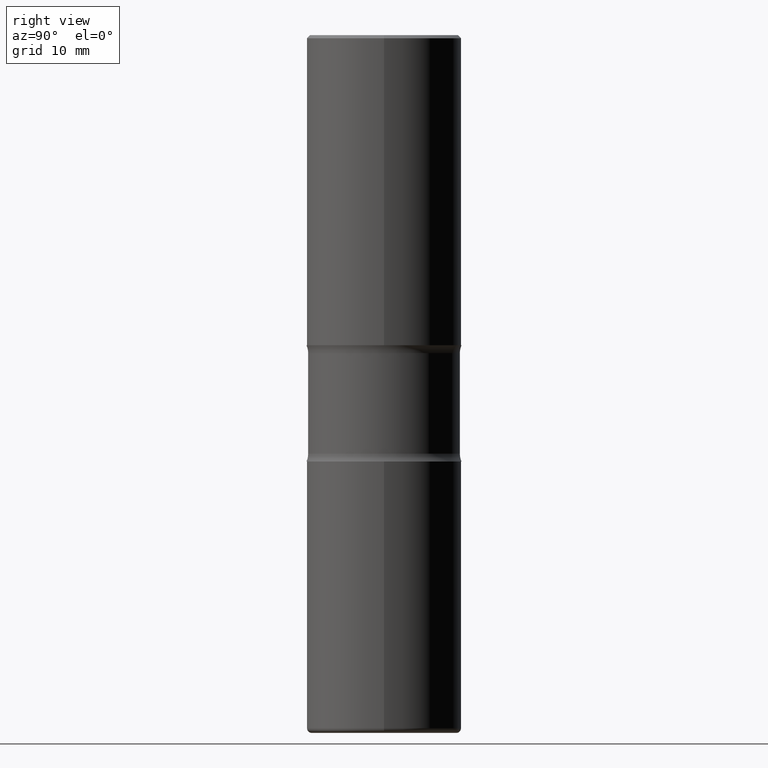
[diagram: clean part render]
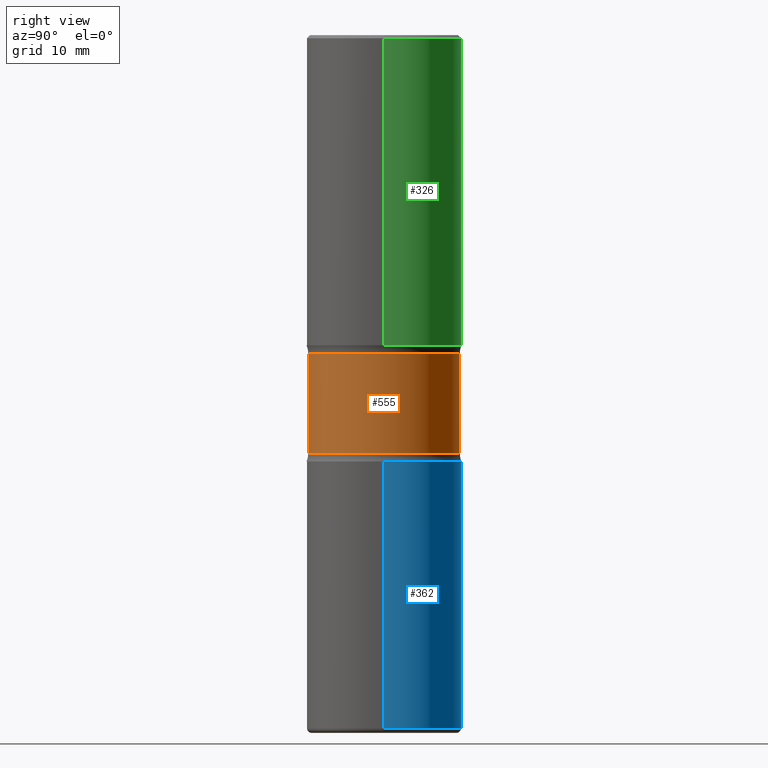
[diagram: same view with three faces highlighted in distinct colors, each labeled with its STEP entity id]
A machine part, right view with three faces highlighted in distinct colors.
Their STEP definitions:

[orange] entity #555 — the highlighted cylindrical surface (partial cylindrical patch) has radius 12.4206 mm, axis along (0, -0, -1).
#44 = AXIS2_PLACEMENT_3D ( 'NONE', #69, #269, #366 ) ;
#55 = VERTEX_POINT ( 'NONE', #398 ) ;
#60 = CYLINDRICAL_SURFACE ( 'NONE', #290, 0.4890000000000000457 ) ;
#65 = VECTOR ( 'NONE', #68, 39.37007874015748143 ) ;
#68 = DIRECTION ( 'NONE',  ( 2.421508309250029379E-29, -3.525794134201012972E-15, -1.000000000000000000 ) ) ;
#69 = CARTESIAN_POINT ( 'NONE',  ( 6.600879344864962376E-29, -9.420792906779880886E-15, -2.698726225026823133 ) ) ;
#102 = VERTEX_POINT ( 'NONE', #196 ) ;
#124 = ORIENTED_EDGE ( 'NONE', *, *, #184, .T. ) ;
#141 = AXIS2_PLACEMENT_3D ( 'NONE', #454, #193, #501 ) ;
#166 = VERTEX_POINT ( 'NONE', #409 ) ;
#178 = DIRECTION ( 'NONE',  ( 2.421508309250029379E-29, -3.525794134201012972E-15, -1.000000000000000000 ) ) ;
#180 = CARTESIAN_POINT ( 'NONE',  ( -3.354783520910168989E-15, -0.4890000000000158109, -4.499999999999999112 ) ) ;
#184 = EDGE_CURVE ( 'NONE', #55, #166, #531, .T. ) ;
#193 = DIRECTION ( 'NONE',  ( 2.421508309250029379E-29, -3.525794134201012578E-15, -1.000000000000000000 ) ) ;
#196 = CARTESIAN_POINT ( 'NONE',  ( 3.414668749388650307E-15, 0.4889999999999906088, -2.698726225026824466 ) ) ;
#198 = LINE ( 'NONE', #371, #65 ) ;
#200 = EDGE_CURVE ( 'NONE', #55, #102, #198, .T. ) ;
#205 = ORIENTED_EDGE ( 'NONE', *, *, #446, .T. ) ;
#229 = DIRECTION ( 'NONE',  ( 6.982962677686265133E-15, 1.000000000000000000, -3.351960728422408359E-15 ) ) ;
#247 = ORIENTED_EDGE ( 'NONE', *, *, #429, .F. ) ;
#269 = DIRECTION ( 'NONE',  ( 2.421508309250029379E-29, -3.525794134201012578E-15, -1.000000000000000000 ) ) ;
#290 = AXIS2_PLACEMENT_3D ( 'NONE', #351, #490, #229 ) ;
#348 = VERTEX_POINT ( 'NONE', #517 ) ;
#351 = CARTESIAN_POINT ( 'NONE',  ( 1.096267875819667930E-28, -1.577171341667042581E-14, -4.500000000000000888 ) ) ;
#354 = CIRCLE ( 'NONE', #44, 0.4890000000000000457 ) ;
#366 = DIRECTION ( 'NONE',  ( 6.982962677686265133E-15, 1.000000000000000000, -3.351960728422408359E-15 ) ) ;
#371 = CARTESIAN_POINT ( 'NONE',  ( 3.414668749388694089E-15, 0.4889999999999842806, -4.500000000000002665 ) ) ;
#398 = CARTESIAN_POINT ( 'NONE',  ( 3.414668749388634135E-15, 0.4889999999999927738, -2.051273774973179975 ) ) ;
#401 = VECTOR ( 'NONE', #178, 39.37007874015748143 ) ;
#409 = CARTESIAN_POINT ( 'NONE',  ( -3.392516259897974288E-15, -0.4890000000000071512, -2.051273774973176867 ) ) ;
#423 = EDGE_LOOP ( 'NONE', ( #124, #205, #247, #556 ) ) ;
#429 = EDGE_CURVE ( 'NONE', #102, #348, #354, .T. ) ;
#446 = EDGE_CURVE ( 'NONE', #166, #348, #540, .T. ) ;
#454 = CARTESIAN_POINT ( 'NONE',  ( 5.033067857215771356E-29, -7.138008856206666499E-15, -2.051273774973178643 ) ) ;
#487 = FACE_OUTER_BOUND ( 'NONE', #423, .T. ) ;
#490 = DIRECTION ( 'NONE',  ( 2.421508309250029379E-29, -3.525794134201012578E-15, -1.000000000000000000 ) ) ;
#501 = DIRECTION ( 'NONE',  ( 6.982962677686265922E-15, 1.000000000000000000, -3.351960728422409147E-15 ) ) ;
#517 = CARTESIAN_POINT ( 'NONE',  ( -3.392516259897956538E-15, -0.4890000000000094271, -2.698726225026821357 ) ) ;
#531 = CIRCLE ( 'NONE', #141, 0.4889999999999999347 ) ;
#540 = LINE ( 'NONE', #180, #401 ) ;
#555 = ADVANCED_FACE ( 'NONE', ( #487 ), #60, .T. ) ;
#556 = ORIENTED_EDGE ( 'NONE', *, *, #200, .F. ) ;

[blue] entity #362 — the highlighted cylindrical surface (partial cylindrical patch) has radius 12.7 mm, axis along (-0, 0, 1).
#14 = CARTESIAN_POINT ( 'NONE',  ( 0.5000000000000004441, -3.491481338843136511E-15, 2.438088387897969858E-29 ) ) ;
#18 = VERTEX_POINT ( 'NONE', #442 ) ;
#21 = CARTESIAN_POINT ( 'NONE',  ( 1.093124556364756229E-28, -1.560692158462886353E-14, -4.470000000000000639 ) ) ;
#43 = AXIS2_PLACEMENT_3D ( 'NONE', #343, #135, #519 ) ;
#51 = VERTEX_POINT ( 'NONE', #183 ) ;
#61 = EDGE_CURVE ( 'NONE', #84, #304, #311, .T. ) ;
#84 = VERTEX_POINT ( 'NONE', #144 ) ;
#118 = CYLINDRICAL_SURFACE ( 'NONE', #43, 0.5000000000000004441 ) ;
#135 = DIRECTION ( 'NONE',  ( -2.445468806185136597E-29, 3.491481338843145583E-15, 1.000000000000000000 ) ) ;
#144 = CARTESIAN_POINT ( 'NONE',  ( 0.5000000000000002220, -1.909840292347200004E-14, -4.470000000000000639 ) ) ;
#161 = EDGE_LOOP ( 'NONE', ( #427, #253, #213, #464 ) ) ;
#168 = FACE_OUTER_BOUND ( 'NONE', #161, .T. ) ;
#172 = DIRECTION ( 'NONE',  ( 1.000000000000000000, -6.982962677686268288E-15, 0.000000000000000000 ) ) ;
#182 = AXIS2_PLACEMENT_3D ( 'NONE', #21, #189, #279 ) ;
#183 = CARTESIAN_POINT ( 'NONE',  ( -0.5000000000000004441, -9.051533954423253397E-15, -2.750000000000000444 ) ) ;
#189 = DIRECTION ( 'NONE',  ( -2.445468806185136597E-29, 3.491481338843145583E-15, 1.000000000000000000 ) ) ;
#208 = EDGE_CURVE ( 'NONE', #18, #51, #463, .T. ) ;
#213 = ORIENTED_EDGE ( 'NONE', *, *, #268, .F. ) ;
#214 = CARTESIAN_POINT ( 'NONE',  ( 0.5000000000000004441, -1.309305502066178953E-14, -2.750000000000000444 ) ) ;
#253 = ORIENTED_EDGE ( 'NONE', *, *, #208, .T. ) ;
#268 = EDGE_CURVE ( 'NONE', #304, #51, #483, .T. ) ;
#275 = VECTOR ( 'NONE', #534, 39.37007874015748143 ) ;
#279 = DIRECTION ( 'NONE',  ( 1.000000000000000000, -6.982962677686268288E-15, 0.000000000000000000 ) ) ;
#287 = CARTESIAN_POINT ( 'NONE',  ( -0.5000000000000004441, 3.552713678800504085E-15, -2.459467545127455133E-29 ) ) ;
#304 = VERTEX_POINT ( 'NONE', #214 ) ;
#311 = LINE ( 'NONE', #14, #275 ) ;
#328 = CARTESIAN_POINT ( 'NONE',  ( 6.725039217009125641E-29, -9.601573681818653015E-15, -2.750000000000000444 ) ) ;
#343 = CARTESIAN_POINT ( 'NONE',  ( 0.000000000000000000, 0.000000000000000000, 0.000000000000000000 ) ) ;
#362 = ADVANCED_FACE ( 'NONE', ( #168 ), #118, .T. ) ;
#385 = AXIS2_PLACEMENT_3D ( 'NONE', #328, #505, #172 ) ;
#427 = ORIENTED_EDGE ( 'NONE', *, *, #546, .T. ) ;
#442 = CARTESIAN_POINT ( 'NONE',  ( -0.5000000000000002220, -1.205420790582835944E-14, -4.470000000000000639 ) ) ;
#463 = LINE ( 'NONE', #287, #513 ) ;
#464 = ORIENTED_EDGE ( 'NONE', *, *, #61, .F. ) ;
#483 = CIRCLE ( 'NONE', #385, 0.5000000000000004441 ) ;
#505 = DIRECTION ( 'NONE',  ( -2.445468806185136597E-29, 3.491481338843145583E-15, 1.000000000000000000 ) ) ;
#513 = VECTOR ( 'NONE', #543, 39.37007874015748143 ) ;
#519 = DIRECTION ( 'NONE',  ( 1.000000000000000000, -6.982962677686266711E-15, 4.876176775795935232E-29 ) ) ;
#534 = DIRECTION ( 'NONE',  ( -2.445468806185136877E-29, 3.491481338843145188E-15, 1.000000000000000000 ) ) ;
#538 = CIRCLE ( 'NONE', #182, 0.5000000000000004441 ) ;
#543 = DIRECTION ( 'NONE',  ( -2.445468806185136877E-29, 3.491481338843145188E-15, 1.000000000000000000 ) ) ;
#546 = EDGE_CURVE ( 'NONE', #84, #18, #538, .T. ) ;

[green] entity #326 — the highlighted cylindrical surface (partial cylindrical patch) has radius 12.7 mm, axis along (-0, 0, 1).
#20 = DIRECTION ( 'NONE',  ( 1.000000000000000000, -6.982962677686266711E-15, 0.000000000000000000 ) ) ;
#22 = CARTESIAN_POINT ( 'NONE',  ( 4.890937612370274875E-29, -6.982962677686292743E-15, -2.000000000000000444 ) ) ;
#23 = CIRCLE ( 'NONE', #201, 0.5000000000000002220 ) ;
#52 = CARTESIAN_POINT ( 'NONE',  ( -0.5000000000000003331, 3.552713678800503296E-15, -2.459467545127454572E-29 ) ) ;
#63 = ORIENTED_EDGE ( 'NONE', *, *, #303, .T. ) ;
#70 = DIRECTION ( 'NONE',  ( -2.445468806185136597E-29, 3.491481338843145583E-15, 1.000000000000000000 ) ) ;
#74 = DIRECTION ( 'NONE',  ( 1.000000000000000000, -6.982962677686267499E-15, 0.000000000000000000 ) ) ;
#89 = DIRECTION ( 'NONE',  ( -2.445468806185136877E-29, 3.491481338843145188E-15, 1.000000000000000000 ) ) ;
#98 = DIRECTION ( 'NONE',  ( -2.445468806185136597E-29, 3.491481338843145583E-15, 1.000000000000000000 ) ) ;
#126 = EDGE_CURVE ( 'NONE', #341, #259, #23, .T. ) ;
#133 = EDGE_CURVE ( 'NONE', #146, #434, #549, .T. ) ;
#146 = VERTEX_POINT ( 'NONE', #234 ) ;
#157 = AXIS2_PLACEMENT_3D ( 'NONE', #331, #98, #176 ) ;
#176 = DIRECTION ( 'NONE',  ( 1.000000000000000000, -6.982962677686266711E-15, 4.876176775795935793E-29 ) ) ;
#194 = EDGE_LOOP ( 'NONE', ( #388, #63, #386, #514 ) ) ;
#201 = AXIS2_PLACEMENT_3D ( 'NONE', #491, #70, #74 ) ;
#204 = CYLINDRICAL_SURFACE ( 'NONE', #157, 0.5000000000000003331 ) ;
#234 = CARTESIAN_POINT ( 'NONE',  ( 0.5000000000000004441, -1.047444401652943004E-14, -2.000000000000000444 ) ) ;
#245 = LINE ( 'NONE', #52, #292 ) ;
#259 = VERTEX_POINT ( 'NONE', #545 ) ;
#265 = DIRECTION ( 'NONE',  ( -2.445468806185136877E-29, 3.491481338843145188E-15, 1.000000000000000000 ) ) ;
#292 = VECTOR ( 'NONE', #89, 39.37007874015748143 ) ;
#303 = EDGE_CURVE ( 'NONE', #434, #259, #245, .T. ) ;
#326 = ADVANCED_FACE ( 'NONE', ( #481 ), #204, .T. ) ;
#331 = CARTESIAN_POINT ( 'NONE',  ( 0.000000000000000000, 0.000000000000000000, 0.000000000000000000 ) ) ;
#340 = VECTOR ( 'NONE', #265, 39.37007874015748143 ) ;
#341 = VERTEX_POINT ( 'NONE', #553 ) ;
#352 = EDGE_CURVE ( 'NONE', #146, #341, #508, .T. ) ;
#386 = ORIENTED_EDGE ( 'NONE', *, *, #126, .F. ) ;
#388 = ORIENTED_EDGE ( 'NONE', *, *, #133, .T. ) ;
#430 = AXIS2_PLACEMENT_3D ( 'NONE', #22, #550, #20 ) ;
#434 = VERTEX_POINT ( 'NONE', #484 ) ;
#481 = FACE_OUTER_BOUND ( 'NONE', #194, .T. ) ;
#484 = CARTESIAN_POINT ( 'NONE',  ( -0.5000000000000004441, 2.631752656892707803E-17, -2.000000000000000444 ) ) ;
#491 = CARTESIAN_POINT ( 'NONE',  ( 4.890937612370298557E-31, -6.982962677686327354E-17, -0.02000000000000010103 ) ) ;
#508 = LINE ( 'NONE', #560, #340 ) ;
#514 = ORIENTED_EDGE ( 'NONE', *, *, #352, .F. ) ;
#545 = CARTESIAN_POINT ( 'NONE',  ( -0.5000000000000002220, 3.421651712066272029E-15, -0.02000000000000010103 ) ) ;
#549 = CIRCLE ( 'NONE', #430, 0.5000000000000004441 ) ;
#550 = DIRECTION ( 'NONE',  ( -2.445468806185136597E-29, 3.491481338843145583E-15, 1.000000000000000000 ) ) ;
#553 = CARTESIAN_POINT ( 'NONE',  ( 0.5000000000000002220, -3.500078625662630657E-15, -0.02000000000000010103 ) ) ;
#560 = CARTESIAN_POINT ( 'NONE',  ( 0.5000000000000003331, -3.491481338843135722E-15, 2.438088387897969578E-29 ) ) ;